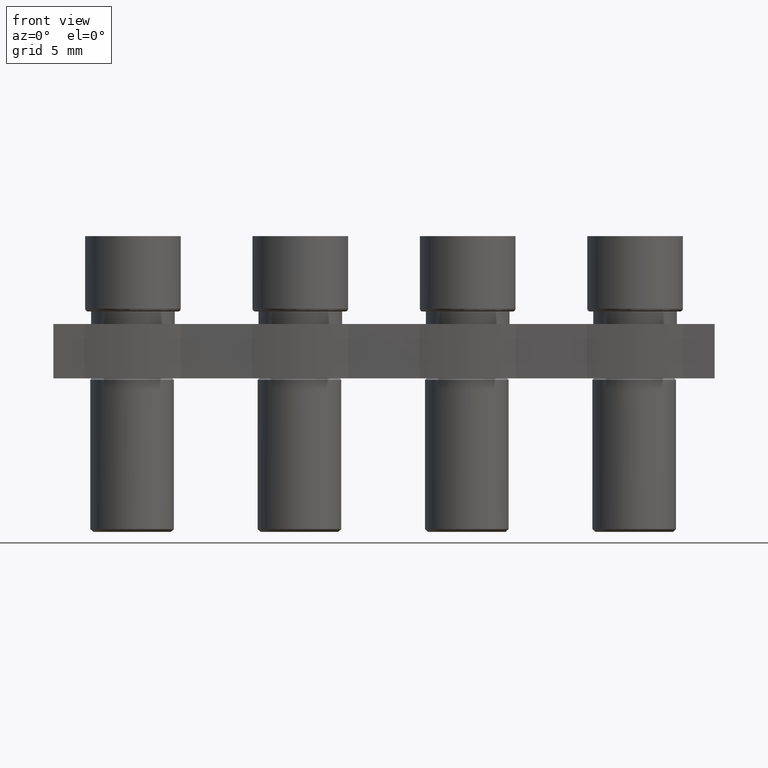
[diagram: clean part render]
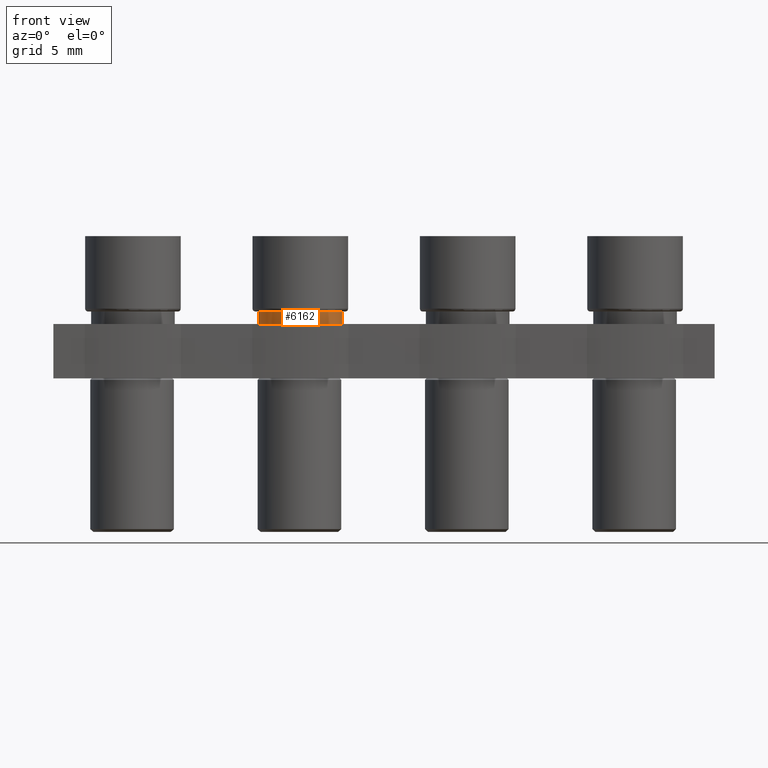
[diagram: same view with one face highlighted and labeled with its STEP entity id]
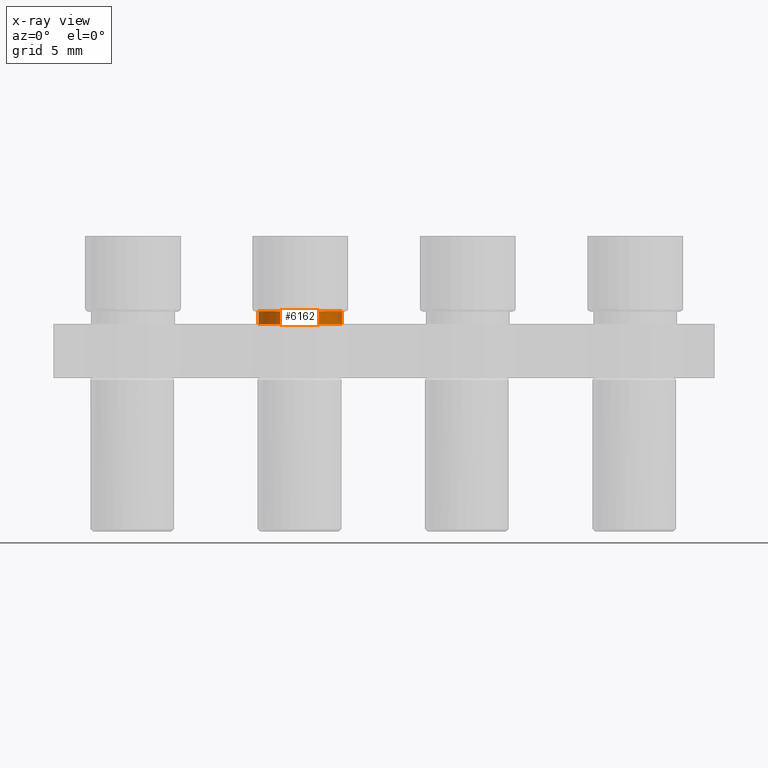
[diagram: x-ray of the same camera — body ghosted, the highlighted face saturated]
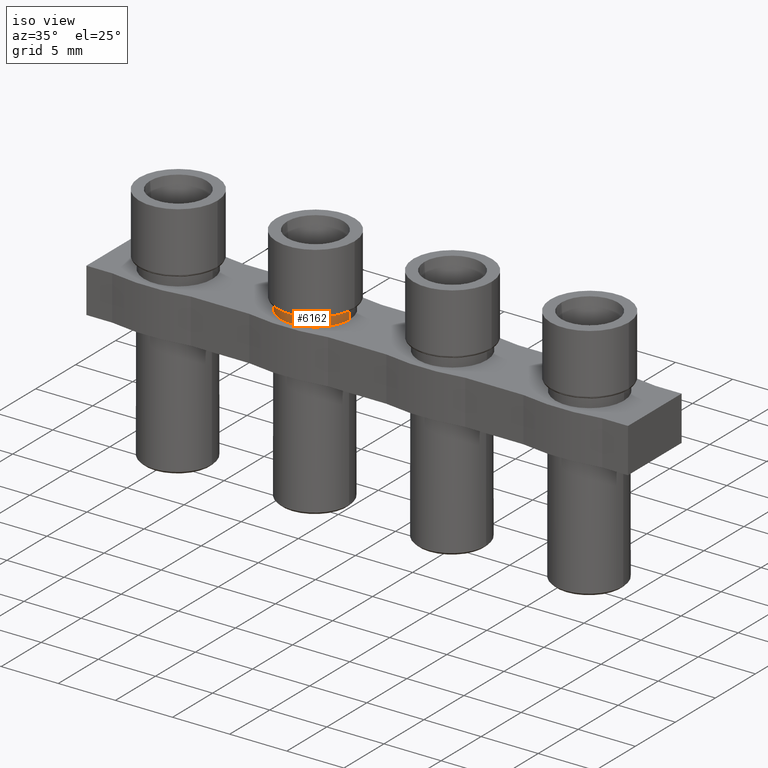
[diagram: same view with one face highlighted and labeled with its STEP entity id]
A machine part, front view. The second image highlights one B-rep face of the part: STEP entity #6162.
The next image is the same camera in x-ray: the body ghosted, the highlighted face saturated — about 0% of this face is hidden behind the body in this view.
A second angle (iso view) of the same face is appended — the face is thin or edge-on in the first view.
In plain terms, the highlighted cylindrical surface (partial cylindrical patch) has radius 3 mm, axis along (-0, -0, -1).
Its self-contained STEP definition (entity closure, byte-faithful):
#22 = EDGE_CURVE ( 'NONE', #1152, #1191, #5245, .T. ) ;
#30 = EDGE_CURVE ( 'NONE', #1176, #1149, #5349, .T. ) ;
#289 = AXIS2_PLACEMENT_3D ( 'NONE', #3495, #3556, #3619 ) ;
#925 = EDGE_LOOP ( 'NONE', ( #2705, #2734, #2655, #2741 ) ) ;
#1149 = VERTEX_POINT ( 'NONE', #1329 ) ;
#1152 = VERTEX_POINT ( 'NONE', #1303 ) ;
#1176 = VERTEX_POINT ( 'NONE', #1325 ) ;
#1191 = VERTEX_POINT ( 'NONE', #1405 ) ;
#1303 = CARTESIAN_POINT ( 'NONE',  ( -15.00000000000000000, -2.289291466493766400E-015, -0.9000000000000014700 ) ) ;
#1325 = CARTESIAN_POINT ( 'NONE',  ( -9.000000000000001800, -1.921897426749560600E-015, 0.0000000000000000000 ) ) ;
#1329 = CARTESIAN_POINT ( 'NONE',  ( -15.00000000000000000, -2.289291466493766400E-015, 0.0000000000000000000 ) ) ;
#1405 = CARTESIAN_POINT ( 'NONE',  ( -9.000000000000001800, -1.921897426749560600E-015, -0.9000000000000014700 ) ) ;
#1934 = CARTESIAN_POINT ( 'NONE',  ( -15.00000000000000000, -2.289291466493766400E-015, 0.0000000000000000000 ) ) ;
#1936 = DIRECTION ( 'NONE',  ( -0.0000000000000000000, -0.0000000000000000000, -1.000000000000000000 ) ) ;
#1953 = LINE ( 'NONE', #1934, #5080 ) ;
#2022 = LINE ( 'NONE', #2023, #5143 ) ;
#2023 = CARTESIAN_POINT ( 'NONE',  ( -9.000000000000001800, -1.921897426749560600E-015, 0.0000000000000000000 ) ) ;
#2035 = DIRECTION ( 'NONE',  ( -0.0000000000000000000, -0.0000000000000000000, -1.000000000000000000 ) ) ;
#2655 = ORIENTED_EDGE ( 'NONE', *, *, #4512, .T. ) ;
#2705 = ORIENTED_EDGE ( 'NONE', *, *, #4537, .F. ) ;
#2734 = ORIENTED_EDGE ( 'NONE', *, *, #30, .T. ) ;
#2741 = ORIENTED_EDGE ( 'NONE', *, *, #22, .T. ) ;
#2839 = DIRECTION ( 'NONE',  ( -1.000000000000000000, 0.0000000000000000000, 0.0000000000000000000 ) ) ;
#2849 = CARTESIAN_POINT ( 'NONE',  ( -12.00000000000000000, -2.289291466493766400E-015, 0.0000000000000000000 ) ) ;
#2856 = CARTESIAN_POINT ( 'NONE',  ( -12.00000000000000000, -2.289291466493766400E-015, -0.9000000000000014700 ) ) ;
#2864 = DIRECTION ( 'NONE',  ( 0.0000000000000000000, 0.0000000000000000000, 1.000000000000000000 ) ) ;
#2871 = DIRECTION ( 'NONE',  ( -1.000000000000000000, 0.0000000000000000000, 0.0000000000000000000 ) ) ;
#2875 = DIRECTION ( 'NONE',  ( -0.0000000000000000000, -0.0000000000000000000, -1.000000000000000000 ) ) ;
#3495 = CARTESIAN_POINT ( 'NONE',  ( -12.00000000000000000, -2.289291466493766400E-015, 0.0000000000000000000 ) ) ;
#3556 = DIRECTION ( 'NONE',  ( -0.0000000000000000000, -0.0000000000000000000, -1.000000000000000000 ) ) ;
#3619 = DIRECTION ( 'NONE',  ( -1.000000000000000000, 0.0000000000000000000, 0.0000000000000000000 ) ) ;
#4409 = FACE_OUTER_BOUND ( 'NONE', #925, .T. ) ;
#4448 = CYLINDRICAL_SURFACE ( 'NONE', #289, 2.999999999999999100 ) ;
#4512 = EDGE_CURVE ( 'NONE', #1149, #1152, #1953, .T. ) ;
#4537 = EDGE_CURVE ( 'NONE', #1176, #1191, #2022, .T. ) ;
#5080 = VECTOR ( 'NONE', #1936, 1000.000000000000000 ) ;
#5143 = VECTOR ( 'NONE', #2035, 1000.000000000000000 ) ;
#5245 = CIRCLE ( 'NONE', #5247, 2.999999999999999100 ) ;
#5247 = AXIS2_PLACEMENT_3D ( 'NONE', #2856, #2864, #2871 ) ;
#5337 = AXIS2_PLACEMENT_3D ( 'NONE', #2849, #2875, #2839 ) ;
#5349 = CIRCLE ( 'NONE', #5337, 2.999999999999999100 ) ;
#6162 = ADVANCED_FACE ( 'NONE', ( #4409 ), #4448, .T. ) ;